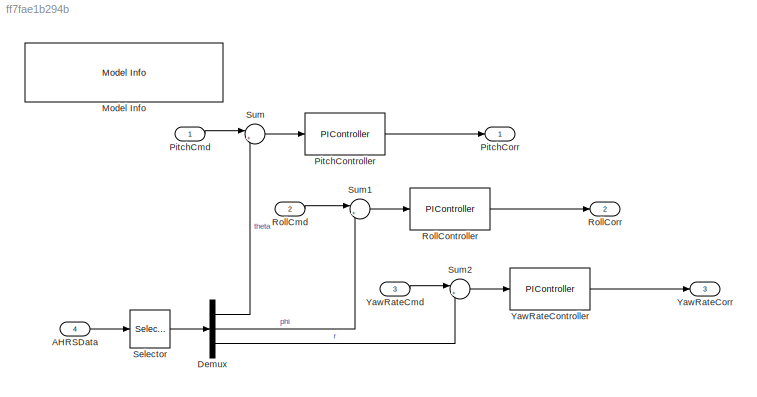
MODEL slx_ff7fae1b294b
KIND model
CONFIG AbsTol = auto
CONFIG EnableMultiTasking = on
CONFIG FixedStep = auto
CONFIG MaxStep = auto
CONFIG MinStep = auto
CONFIG RelTol = 1e-3
CONFIG SampleTimeConstraint = Unconstrained
CONFIG SolverName = FixedStepDiscrete
CONFIG StartTime = 0.0
CONFIG StopTime = 10.0
BLOCK [Inport] AHRSData
  OutDataTypeStr = double
  OutMax = 180
  OutMin = -180
  Port = 4
  PortDimensions = 5
  SampleTime = 0.01
BLOCK [Demux] Demux
  Outputs = 3
BLOCK [Reference] Model Info  REF=simulink/Model-Wide
Utilities/Model Info
  SourceBlock = simulink/Model-Wide\nUtilities/Model Info
  SourceType = CMBlock
BLOCK [Inport] PitchCmd
  OutDataTypeStr = double
  OutMax = 30
  OutMin = -30
  PortDimensions = 1
  SampleTime = 0.01
BLOCK [Reference] PitchController  REF=ControlLib/PIController
  AttributesFormatString = %<lo> to %<hi>
  SourceBlock = ControlLib/PIController
  SourceType = PI Controller
  Tag = FilterWizardSubSystem
  UserDataPersistent = on
BLOCK [Outport] PitchCorr
  OutDataTypeStr = double
  VectorParamsAs1DForOutWhenUnconnected = off
BLOCK [Inport] RollCmd
  OutDataTypeStr = double
  OutMax = 30
  OutMin = -30
  Port = 2
  PortDimensions = 1
  SampleTime = 0.01
BLOCK [Reference] RollController  REF=ControlLib/PIController
  AttributesFormatString = %<lo> to %<hi>
  SourceBlock = ControlLib/PIController
  SourceType = PI Controller
  Tag = FilterWizardSubSystem
  UserDataPersistent = on
BLOCK [Outport] RollCorr
  OutDataTypeStr = double
  Port = 2
  VectorParamsAs1DForOutWhenUnconnected = off
BLOCK [Selector] Selector
  IndexOptions = Index vector (dialog)
  Indices = [1 2 3]
  InputPortWidth = 5
  OutputSizes = 1
BLOCK [Sum] Sum
  AccumDataTypeStr = Inherit: Same as first input
  InputSameDT = on
  Inputs = |+-
  OutDataTypeStr = Inherit: Same as first input
BLOCK [Sum] Sum1
  AccumDataTypeStr = Inherit: Same as first input
  InputSameDT = on
  Inputs = |+-
  OutDataTypeStr = Inherit: Same as first input
BLOCK [Sum] Sum2
  AccumDataTypeStr = Inherit: Same as first input
  InputSameDT = on
  Inputs = |+-
  OutDataTypeStr = Inherit: Same as first input
BLOCK [Inport] YawRateCmd
  OutDataTypeStr = double
  OutMax = 15
  OutMin = -15
  Port = 3
  PortDimensions = 1
  SampleTime = 0.01
BLOCK [Reference] YawRateController  REF=ControlLib/PIController
  AttributesFormatString = %<lo> to %<hi>
  SourceBlock = ControlLib/PIController
  SourceType = PI Controller
  Tag = FilterWizardSubSystem
  UserDataPersistent = on
BLOCK [Outport] YawRateCorr
  OutDataTypeStr = double
  Port = 3
  VectorParamsAs1DForOutWhenUnconnected = off
LINE AHRSData:1 -> Selector:1
LINE Demux:1 -> Sum:2
LINE Demux:2 -> Sum1:2
LINE Demux:3 -> Sum2:2
LINE PitchCmd:1 -> Sum:1
LINE PitchController:1 -> PitchCorr:1
LINE RollCmd:1 -> Sum1:1
LINE RollController:1 -> RollCorr:1
LINE Selector:1 -> Demux:1
LINE Sum1:1 -> RollController:1
LINE Sum2:1 -> YawRateController:1
LINE Sum:1 -> PitchController:1
LINE YawRateCmd:1 -> Sum2:1
LINE YawRateController:1 -> YawRateCorr:1
